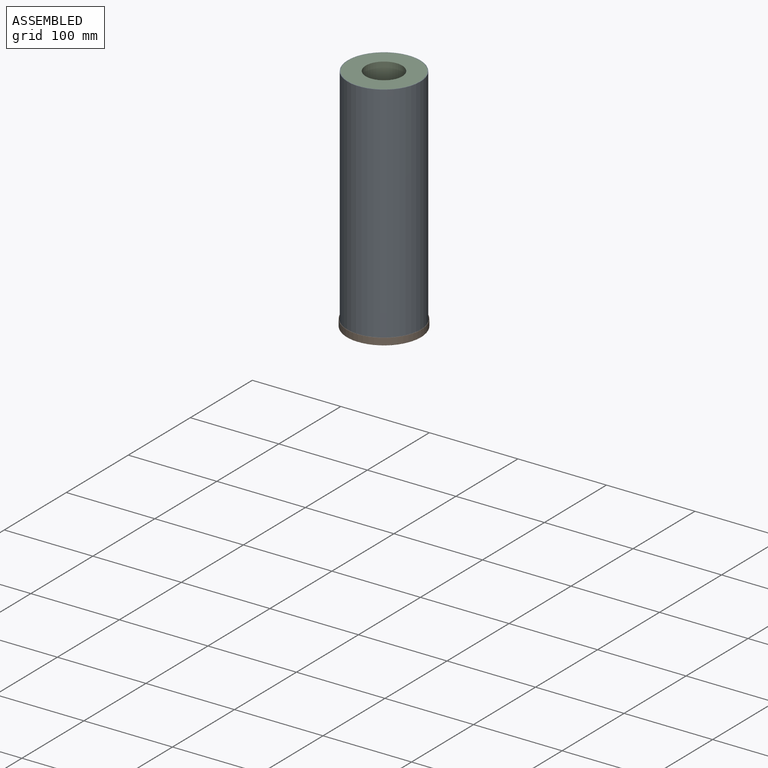
[diagram: assembled view]
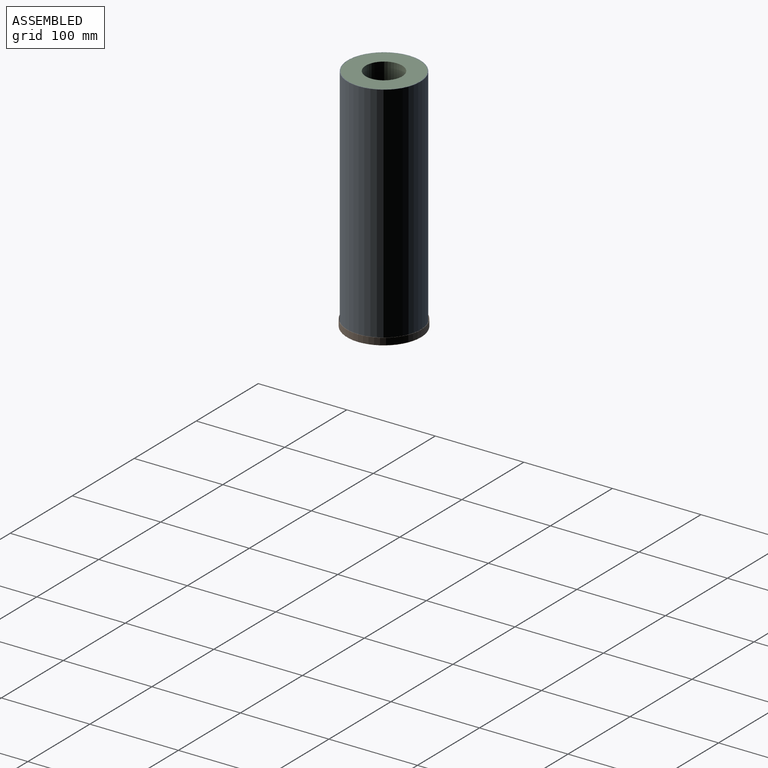
[diagram: assembled view, second angle]
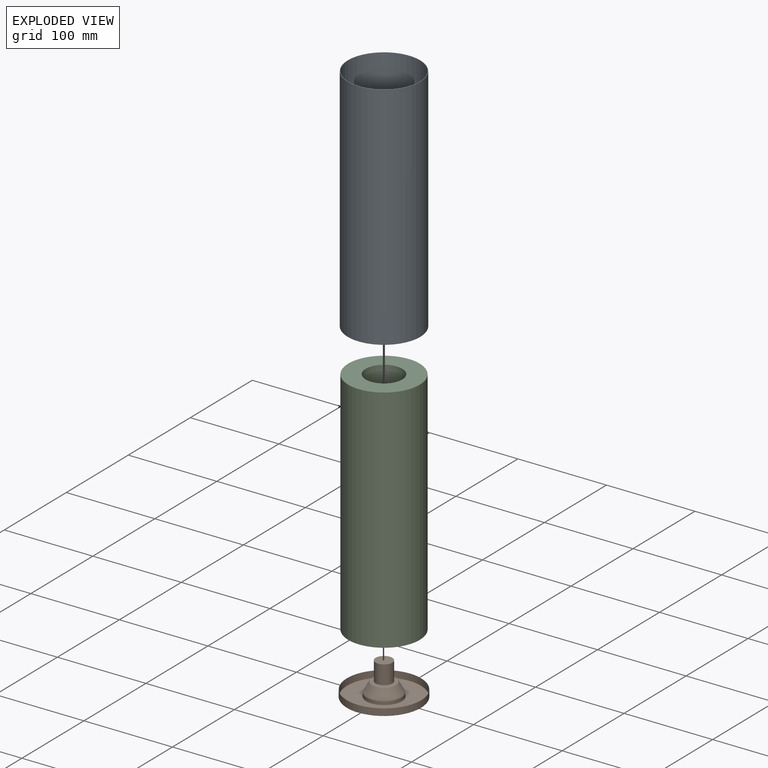
[diagram: exploded view]
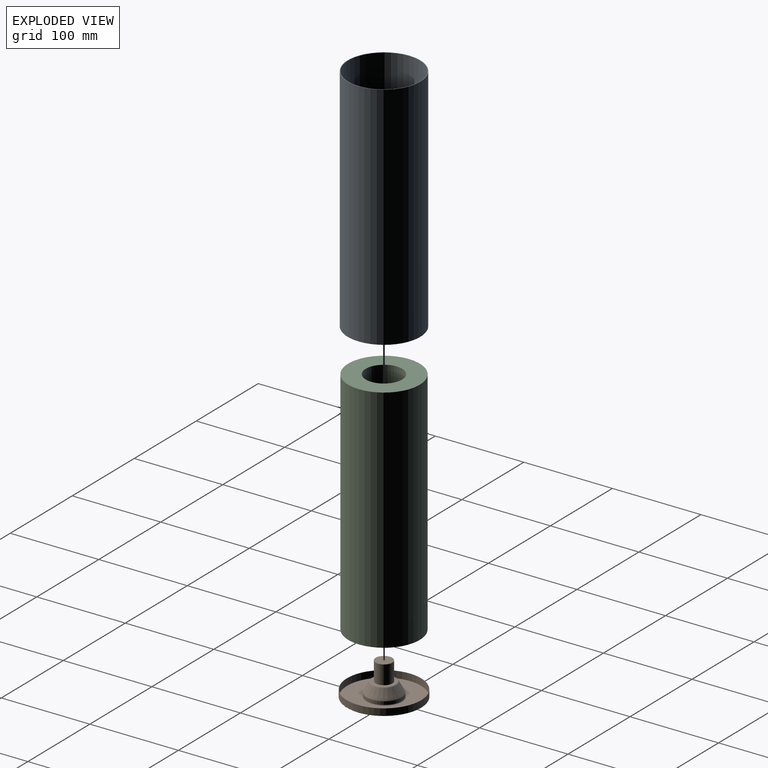
[diagram: exploded view, second angle]
ASSEMBLY  parts=3 mates=2
PART A: 4 faces, bbox 82x82x260.5 mm
  f0: cylinder r=40.44mm len=260.5mm, axis (0,0,-1), area 66185.7mm2, adj f2,f3
  f1: cylinder r=41mm len=260.5mm, axis (0,0,-1), area 67100.4mm2, adj f2,f3
  f2: plane 81.99x81.99mm, normal (0,0,1), area 143mm2, adj f0,f1
  f3: plane 81.99x81.99mm, normal (0,0,-1), area 143mm2, adj f0,f1
PART B: 23 faces, bbox 90.9x90.9x37.6 mm
  f0: cylinder r=19.5mm len=39mm, axis (0,0,1), area 392.3mm2, adj f1,f22
  f1: torus R=20.8mm, axis (0,0,1), area 255.3mm2, adj f0,f2
  f2: plane 82.88x82.88mm, normal (0,0,-1), area 4036.7mm2, adj f1,f3
  f3: torus R=41.44mm, axis (0,0,1), area 230.5mm2, adj f2,f4
  f4: cylinder r=42mm len=84mm, axis (0,0,1), area 1963.7mm2, adj f3,f5
  f5: plane 84x84mm, normal (0,0,1), area 80.1mm2, adj f4,f6
  f6: cylinder r=41.7mm len=83.39mm, axis (0,0,1), area 1950.5mm2, adj f5,f7
  f7: torus R=41.45mm, axis (0,0,1), area 102.7mm2, adj f6,f8
  f8: plane 82.89x82.89mm, normal (0,0,1), area 4036.5mm2, adj f7,f9
  f9: torus R=20.8mm, axis (0,0,1), area 199.1mm2, adj f8,f10
  f10: cylinder r=19.8mm len=39.61mm, axis (0,0,1), area 397.1mm2, adj f9,f11
  f11: torus R=17.49mm, axis (0,0,1), area 146.3mm2, adj f10,f12
  f12: cone r=13.84mm half-angle=29.3deg, axis (0,0,-1), area 1214.6mm2, adj f11,f13
  f13: torus R=12.71mm, axis (0,0,1), area 114.9mm2, adj f12,f14
  f14: plane 25.41x25.41mm, normal (0,0,1), area 229.6mm2, adj f13,f15
  f15: cylinder r=9.4mm len=21.2mm, axis (0,0,1), area 1252.1mm2, adj f14,f16
  f16: plane 18.8x18.8mm, normal (0,0,1), area 277.6mm2, adj f15
  f17: plane 23x23mm, normal (0,0,-1), area 415.5mm2, adj f18
  f18: cylinder r=11.5mm len=23mm, axis (0,0,1), area 198.4mm2, adj f17,f19
  f19: plane 25.4x25.4mm, normal (0,0,-1), area 91.2mm2, adj f18,f20
  f20: torus R=12.7mm, axis (0,0,1), area 87.7mm2, adj f19,f21
  f21: cone r=19.24mm half-angle=29.3deg, axis (0,0,-1), area 1195mm2, adj f20,f22
  f22: torus R=17.5mm, axis (0,0,1), area 124.8mm2, adj f0,f21
PART C: 4 faces, bbox 80.8x80.8x260.5 mm
  f0: cylinder r=20.6mm len=260.5mm, axis (0,0,-1), area 33717.5mm2, adj f2,f3
  f1: cylinder r=40.4mm len=260.5mm, axis (0,0,-1), area 66125.5mm2, adj f2,f3
  f2: plane 80.8x80.8mm, normal (0,0,1), area 3794.4mm2, adj f0,f1
  f3: plane 80.8x80.8mm, normal (0,0,-1), area 3794.4mm2, adj f0,f1
PLACE A t=(2.92,-5.74,-29.63)mm
PLACE B t=(2.92,-5.74,7.67)mm
PLACE C t=(2.92,-5.74,-29.63)mm
MATE fastened C.f0 <-> B.f7  axis (0,0,-1) through (2.92,-5.74,-29.63)mm
MATE fastened C.f1 <-> A.f0  axis (0,0,1) through (2.92,-5.74,230.87)mm
